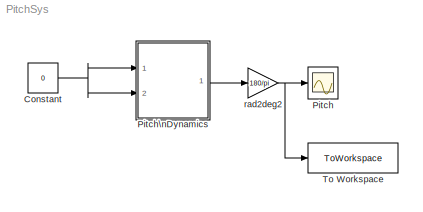
MODEL PitchSys
KIND model
BLOCK [Constant] Constant
  SID = 351
  Value = 0
BLOCK [Scope] Pitch
  Floating = off
  NumInputPorts = 1
  Ports = [1]
  SID = 256
  ScopeSpecificationString = Simulink.scopes.TimeScopeBlockCfg('CurrentConfiguration', extmgr.ConfigurationSet(extmgr.Configuration('Core','General UI',true),extmgr.Configuration('Core','Source UI',true),extmgr.Configuration('Sources','WiredSimulink',true,'DataLogging',true,'DataLoggingVariableName','pitch','DataLoggingSaveFormat','StructureWithTime','DataLoggingDecimation','1','DataLoggingDecimateData',true),extmgr.Configura...<+1686ch>
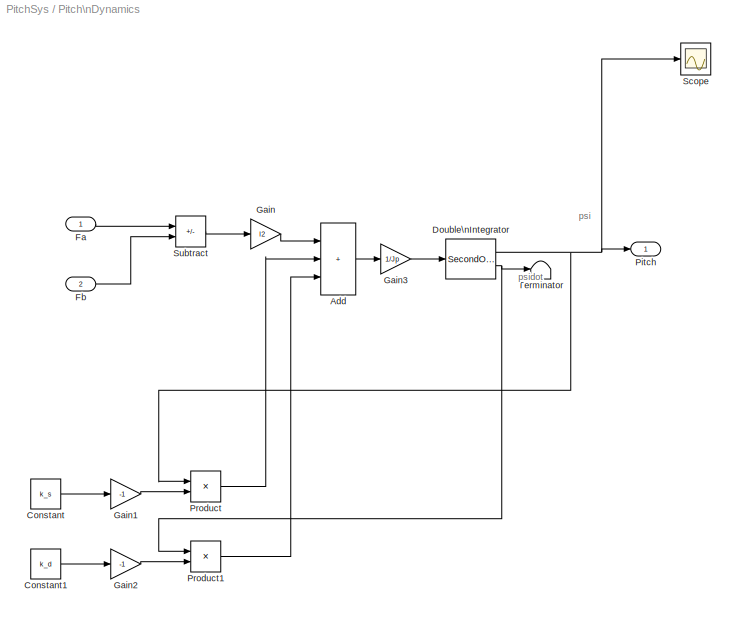
BLOCK [SubSystem] Pitch\nDynamics
  Ports = [2, 1]
  RequestExecContextInheritance = off
  SID = 369
BLOCK [Sum] Pitch\nDynamics/Add
  IconShape = rectangular
  Inputs = +++
  Ports = [3, 1]
  SID = 388
BLOCK [Constant] Pitch\nDynamics/Constant
  SID = 402
  Value = k_s
BLOCK [Constant] Pitch\nDynamics/Constant1
  SID = 403
  Value = k_d
BLOCK [SecondOrderIntegrator] Pitch\nDynamics/Double\nIntegrator
  ICX = p_lim_u
  LimitX = on
  LowerLimitX = p_lim_l
  Ports = [1, 2]
  SID = 373
  UpperLimitX = p_lim_u
BLOCK [Inport] Pitch\nDynamics/Fa
  SID = 370
BLOCK [Inport] Pitch\nDynamics/Fb
  Port = 2
  SID = 371
BLOCK [Gain] Pitch\nDynamics/Gain
  Gain = l2
  SID = 387
BLOCK [Gain] Pitch\nDynamics/Gain1
  Gain = -1
  SID = 392
BLOCK [Gain] Pitch\nDynamics/Gain2
  Gain = -1
  SID = 393
BLOCK [Gain] Pitch\nDynamics/Gain3
  Gain = 1/Jp
  SID = 410
BLOCK [Outport] Pitch\nDynamics/Pitch
  SID = 380
BLOCK [Product] Pitch\nDynamics/Product
  Ports = [2, 1]
  SID = 398
BLOCK [Product] Pitch\nDynamics/Product1
  Ports = [2, 1]
  SID = 399
BLOCK [Scope] Pitch\nDynamics/Scope
  Floating = off
  NumInputPorts = 1
  Ports = [1]
  SID = 408
  ScopeSpecificationString = Simulink.scopes.TimeScopeBlockCfg('CurrentConfiguration', extmgr.ConfigurationSet(extmgr.Configuration('Core','General UI',true),extmgr.Configuration('Core','Source UI',true),extmgr.Configuration('Sources','WiredSimulink',true,'DataLoggingVariableName','ScopeData1'),extmgr.Configuration('Visuals','Time Domain',true,'SerializedDisplays',{struct('MinYLimReal','-0.95656','MaxYLimReal','1.65769','YLab...<+1378ch>
BLOCK [Sum] Pitch\nDynamics/Subtract
  IconShape = rectangular
  Inputs = +-
  Ports = [2, 1]
  SID = 386
BLOCK [Terminator] Pitch\nDynamics/Terminator
  SID = 381
BLOCK [ToWorkspace] To Workspace
  FixptAsFi = on
  MaxDataPoints = inf
  Ports = [1]
  SID = 404
  SampleTime = -1
  SaveFormat = Timeseries
  VariableName = pitchOutput
BLOCK [Gain] rad2deg2
  Gain = 180/pi
  OutDataTypeStr = Inherit: Same as input
  ParamDataTypeStr = Inherit: Same as input
  SID = 273
  SaturateOnIntegerOverflow = on
ANNOTATION Pitch\nDynamics: psi
ANNOTATION Pitch\nDynamics: psidot
NET Constant:1 -> Pitch\nDynamics:1, Pitch\nDynamics:2
LINE Pitch\nDynamics/Add:1 -> Pitch\nDynamics/Gain3:1
LINE Pitch\nDynamics/Constant1:1 -> Pitch\nDynamics/Gain2:1
LINE Pitch\nDynamics/Constant:1 -> Pitch\nDynamics/Gain1:1
NET Pitch\nDynamics/Double\nIntegrator:1 -> Pitch\nDynamics/Pitch:1, Pitch\nDynamics/Product:1, Pitch\nDynamics/Scope:1
NET Pitch\nDynamics/Double\nIntegrator:2 -> Pitch\nDynamics/Product1:1, Pitch\nDynamics/Terminator:1
LINE Pitch\nDynamics/Fa:1 -> Pitch\nDynamics/Subtract:1
LINE Pitch\nDynamics/Fb:1 -> Pitch\nDynamics/Subtract:2
LINE Pitch\nDynamics/Gain1:1 -> Pitch\nDynamics/Product:2
LINE Pitch\nDynamics/Gain2:1 -> Pitch\nDynamics/Product1:2
LINE Pitch\nDynamics/Gain3:1 -> Pitch\nDynamics/Double\nIntegrator:1
LINE Pitch\nDynamics/Gain:1 -> Pitch\nDynamics/Add:1
LINE Pitch\nDynamics/Product1:1 -> Pitch\nDynamics/Add:3
LINE Pitch\nDynamics/Product:1 -> Pitch\nDynamics/Add:2
LINE Pitch\nDynamics/Subtract:1 -> Pitch\nDynamics/Gain:1
LINE Pitch\nDynamics:1 -> rad2deg2:1
NET rad2deg2:1 -> Pitch:1, To Workspace:1
note: NET lines group one-source signal fan-out (src -> all destinations, sorted); 1:1 wires keep LINE
